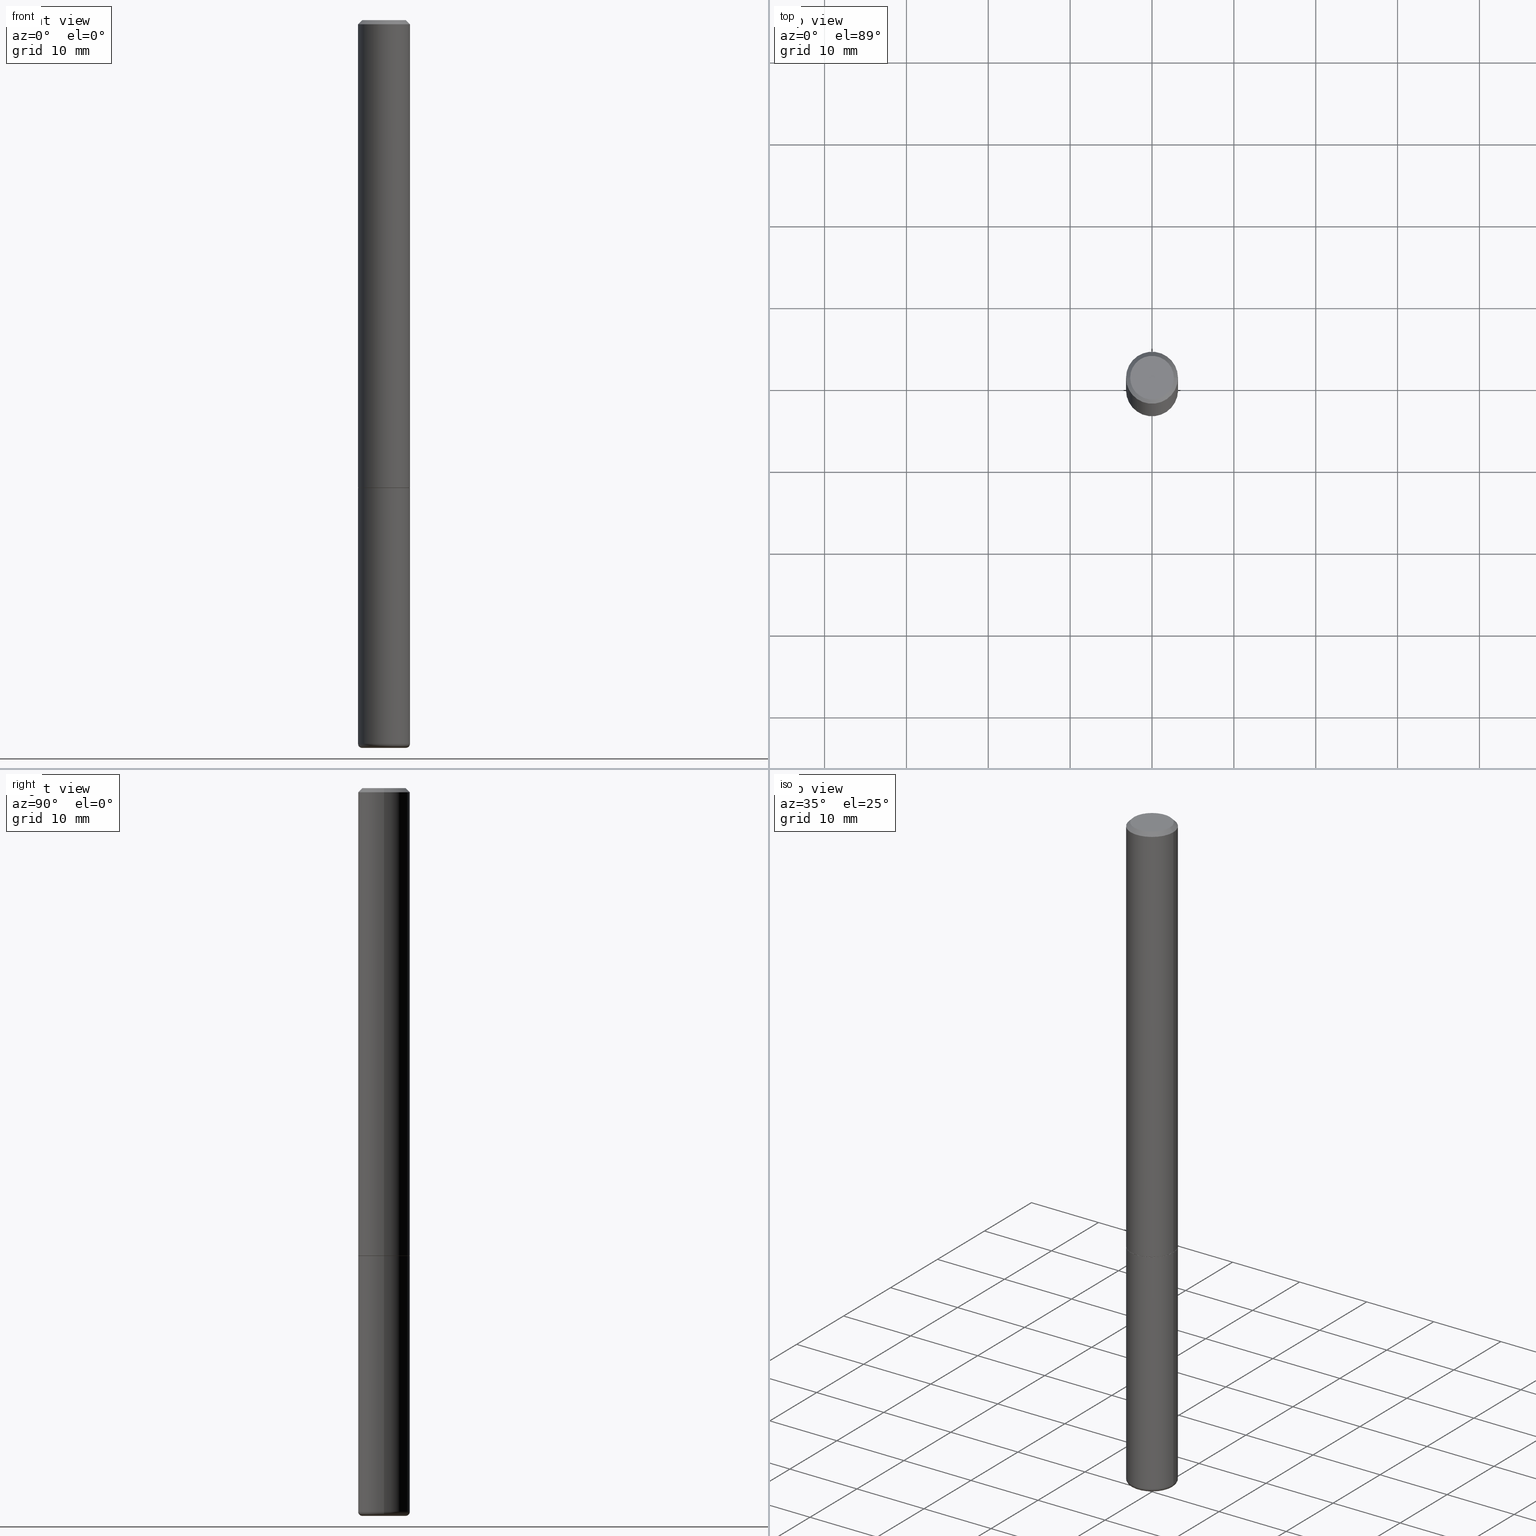
[diagram: canonical four-view strip — front | top / right | iso, engineering-drawing reading convention]
A machine part, canonical four-view strip (front | top / right | iso — engineering-drawing reading convention). The complete STEP part file that produces these views, byte-faithful:
ISO-10303-21;
HEADER;
FILE_DESCRIPTION (( 'STEP AP203' ),
    '1' );
FILE_NAME ('33454.STEP',
    '2022-11-02T20:12:24',
    ( '' ),
    ( '' ),
    'SwSTEP 2.0',
    'SolidWorks 2022',
    '' );
FILE_SCHEMA (( 'CONFIG_CONTROL_DESIGN' ));
ENDSEC;

DATA;
#1 = AXIS2_PLACEMENT_3D ( 'NONE', #5, #384, #197 ) ;
#2 = CARTESIAN_POINT ( 'NONE',  ( 8.510233307843451119E-29, -1.215035771807236405E-14, -3.480000761538716514 ) ) ;
#3 = FACE_OUTER_BOUND ( 'NONE', #368, .T. ) ;
#4 = ORIENTED_EDGE ( 'NONE', *, *, #218, .T. ) ;
#5 = CARTESIAN_POINT ( 'NONE',  ( 0.000000000000000000, 0.000000000000000000, 0.000000000000000000 ) ) ;
#6 = ORIENTED_EDGE ( 'NONE', *, *, #226, .T. ) ;
#7 = DIRECTION ( 'NONE',  ( 1.000000000000000000, -6.982962677686299054E-15, 0.000000000000000000 ) ) ;
#8 = COORDINATED_UNIVERSAL_TIME_OFFSET ( 5, 0, .BEHIND. ) ;
#9 = VERTEX_POINT ( 'NONE', #140 ) ;
#10 = VECTOR ( 'NONE', #110, 39.37007874015748143 ) ;
#11 = CYLINDRICAL_SURFACE ( 'NONE', #457, 0.1250000000000000278 ) ;
#12 = APPROVAL_STATUS ( 'not_yet_approved' ) ;
#13 = CC_DESIGN_SECURITY_CLASSIFICATION ( #485, ( #164 ) ) ;
#14 = ADVANCED_FACE ( 'NONE', ( #256 ), #482, .F. ) ;
#15 = VERTEX_POINT ( 'NONE', #224 ) ;
#16 = EDGE_LOOP ( 'NONE', ( #41, #174, #159, #275 ) ) ;
#17 = PERSON_AND_ORGANIZATION ( #399, #56 ) ;
#18 = VERTEX_POINT ( 'NONE', #416 ) ;
#19 = AXIS2_PLACEMENT_3D ( 'NONE', #414, #65, #369 ) ;
#20 = VERTEX_POINT ( 'NONE', #26 ) ;
#21 = ORIENTED_EDGE ( 'NONE', *, *, #378, .F. ) ;
#22 = DIRECTION ( 'NONE',  ( 2.445468806185136597E-29, -3.491481338843145583E-15, -1.000000000000000000 ) ) ;
#23 = LINE ( 'NONE', #225, #133 ) ;
#24 = VECTOR ( 'NONE', #490, 39.37007874015748143 ) ;
#25 = EDGE_CURVE ( 'NONE', #387, #18, #411, .T. ) ;
#26 = CARTESIAN_POINT ( 'NONE',  ( 0.09149296929003288004, -1.284746578135302470E-14, -3.499883649035179456 ) ) ;
#27 = DIRECTION ( 'NONE',  ( 2.445468806185136597E-29, -3.491481338843145583E-15, -1.000000000000000000 ) ) ;
#28 = PRODUCT_RELATED_PRODUCT_CATEGORY ( 'detail', '', ( #295 ) ) ;
#29 = DIRECTION ( 'NONE',  ( -2.445468806185136877E-29, 3.491481338843145188E-15, 1.000000000000000000 ) ) ;
#30 = CARTESIAN_POINT ( 'NONE',  ( 0.000000000000000000, 0.000000000000000000, 0.000000000000000000 ) ) ;
#31 = CIRCLE ( 'NONE', #269, 0.09149296929003288004 ) ;
#32 = CIRCLE ( 'NONE', #72, 0.1250000000000000278 ) ;
#33 = FACE_OUTER_BOUND ( 'NONE', #439, .T. ) ;
#34 = LINE ( 'NONE', #346, #219 ) ;
#35 = FACE_OUTER_BOUND ( 'NONE', #467, .T. ) ;
#36 = ADVANCED_FACE ( 'NONE', ( #220 ), #333, .T. ) ;
#37 =( NAMED_UNIT ( * ) PLANE_ANGLE_UNIT ( ) SI_UNIT ( $, .RADIAN. ) );
#38 = CONICAL_SURFACE ( 'NONE', #143, 0.1249999999999993477, 0.7853981633974473908 ) ;
#39 = DIRECTION ( 'NONE',  ( 1.000000000000000000, -6.982962677686262766E-15, 0.000000000000000000 ) ) ;
#40 = MANIFOLD_SOLID_BREP ( 'Body-Move/Copy2[1]', #90 ) ;
#41 = ORIENTED_EDGE ( 'NONE', *, *, #77, .F. ) ;
#42 = FACE_OUTER_BOUND ( 'NONE', #246, .T. ) ;
#43 = ORIENTED_EDGE ( 'NONE', *, *, #205, .F. ) ;
#44 = CC_DESIGN_DATE_AND_TIME_ASSIGNMENT ( #491, #117, ( #156 ) ) ;
#45 = EDGE_CURVE ( 'NONE', #18, #168, #445, .T. ) ;
#46 = CARTESIAN_POINT ( 'NONE',  ( -0.09149296929003288004, -1.158088645890558740E-14, -3.499883649035179456 ) ) ;
#47 = DATE_TIME_ROLE ( 'classification_date' ) ;
#48 = AXIS2_PLACEMENT_3D ( 'NONE', #311, #149, #83 ) ;
#49 = CARTESIAN_POINT ( 'NONE',  ( -0.1250000000000000278, -9.114916945534594439E-15, -3.480000761538716514 ) ) ;
#50 = EDGE_LOOP ( 'NONE', ( #134, #163, #248, #325 ) ) ;
#51 = APPROVAL ( #302, 'UNSPECIFIED' ) ;
#52 = ORIENTED_EDGE ( 'NONE', *, *, #45, .T. ) ;
#53 = ORIENTED_EDGE ( 'NONE', *, *, #218, .F. ) ;
#54 = ORIENTED_EDGE ( 'NONE', *, *, #267, .F. ) ;
#55 = AXIS2_PLACEMENT_3D ( 'NONE', #191, #230, #39 ) ;
#56 = ORGANIZATION ( 'UNSPECIFIED', 'UNSPECIFIED', '' ) ;
#57 = EDGE_LOOP ( 'NONE', ( #288, #398 ) ) ;
#58 = DIRECTION ( 'NONE',  ( -0.7071067811865232589, 7.493145998870265808E-15, 0.7071067811865715536 ) ) ;
#59 = CARTESIAN_POINT ( 'NONE',  ( -0.1250000000000000278, -3.072907159217412699E-15, -2.248999999999999222 ) ) ;
#60 = CARTESIAN_POINT ( 'NONE',  ( 5.502304813916556222E-29, -7.855833012397075293E-15, -2.249999999999999556 ) ) ;
#61 = CARTESIAN_POINT ( 'NONE',  ( 0.1249999999999993477, -9.273918764983004048E-16, -0.02000000000000014266 ) ) ;
#62 = EDGE_CURVE ( 'NONE', #360, #492, #186, .T. ) ;
#63 = DIRECTION ( 'NONE',  ( 1.000000000000000000, -6.982962677686269077E-15, 0.000000000000000000 ) ) ;
#64 = AXIS2_PLACEMENT_3D ( 'NONE', #30, #266, #463 ) ;
#65 = DIRECTION ( 'NONE',  ( 2.445468806185136597E-29, -3.491481338843145583E-15, -1.000000000000000000 ) ) ;
#66 = CARTESIAN_POINT ( 'NONE',  ( 1.043851414335219781E-45, -1.490343170380447145E-31, -4.268512490100411279E-17 ) ) ;
#67 = CARTESIAN_POINT ( 'NONE',  ( 0.09149296929003288004, -1.284746578135302470E-14, -3.499883649035179456 ) ) ;
#68 = EDGE_CURVE ( 'NONE', #340, #9, #297, .T. ) ;
#69 = CARTESIAN_POINT ( 'NONE',  ( 0.1250000000000000278, -8.728703347107836346E-16, 6.095220969744921142E-30 ) ) ;
#70 = LENGTH_MEASURE_WITH_UNIT ( LENGTH_MEASURE( 0.02539999999999999897 ), #273 );
#71 = AXIS2_PLACEMENT_3D ( 'NONE', #293, #104, #257 ) ;
#72 = AXIS2_PLACEMENT_3D ( 'NONE', #449, #444, #331 ) ;
#73 = DIRECTION ( 'NONE',  ( 1.000000000000000000, -6.982962677686258822E-15, 4.883557194083110659E-29 ) ) ;
#74 = MECHANICAL_CONTEXT ( 'NONE', #255, 'mechanical' ) ;
#75 = DIRECTION ( 'NONE',  ( 2.438088387897960049E-29, -3.491481338843145188E-15, -1.000000000000000000 ) ) ;
#76 = DIRECTION ( 'NONE',  ( 1.000000000000000000, -6.982962677686265922E-15, 0.000000000000000000 ) ) ;
#77 = EDGE_CURVE ( 'NONE', #354, #139, #334, .T. ) ;
#78 = CARTESIAN_POINT ( 'NONE',  ( 0.1250000000000000278, -8.728703347107860209E-15, -2.249999999999999556 ) ) ;
#79 = DIRECTION ( 'NONE',  ( -2.445468806185136597E-29, 3.491481338843145583E-15, 1.000000000000000000 ) ) ;
#80 = ORIENTED_EDGE ( 'NONE', *, *, #188, .F. ) ;
#81 = TOROIDAL_SURFACE ( 'NONE', #456, 0.1050000000000002459, 0.01999999999999983041 ) ;
#82 = CIRCLE ( 'NONE', #213, 0.1249999999999993477 ) ;
#83 = DIRECTION ( 'NONE',  ( 1.000000000000000000, -6.982962677686261189E-15, 0.000000000000000000 ) ) ;
#84 = FACE_OUTER_BOUND ( 'NONE', #57, .T. ) ;
#85 = CARTESIAN_POINT ( 'NONE',  ( 5.502304813916556222E-29, -7.855833012397075293E-15, -2.249999999999999556 ) ) ;
#86 = DATE_AND_TIME ( #201, #344 ) ;
#87 = EDGE_CURVE ( 'NONE', #18, #387, #249, .T. ) ;
#88 = SECURITY_CLASSIFICATION_LEVEL ( 'unclassified' ) ;
#89 = ORIENTED_EDGE ( 'NONE', *, *, #210, .F. ) ;
#90 = CLOSED_SHELL ( 'NONE', ( #118, #281, #243, #135, #14, #349, #343, #222, #146 ) ) ;
#91 = VECTOR ( 'NONE', #223, 39.37007874015748143 ) ;
#92 = CC_DESIGN_APPROVAL ( #408, ( #164 ) ) ;
#93 = EDGE_LOOP ( 'NONE', ( #207, #436, #284, #320 ) ) ;
#94 = APPROVAL_ROLE ( '' ) ;
#95 = ORIENTED_EDGE ( 'NONE', *, *, #25, .T. ) ;
#96 = ORIENTED_EDGE ( 'NONE', *, *, #171, .T. ) ;
#97 = ORIENTED_EDGE ( 'NONE', *, *, #102, .F. ) ;
#98 = CONICAL_SURFACE ( 'NONE', #177, 0.1048254692900328910, 1.562069680534929894 ) ;
#99 = DIRECTION ( 'NONE',  ( -2.445468806185136597E-29, 3.491481338843145583E-15, 1.000000000000000000 ) ) ;
#100 = DIRECTION ( 'NONE',  ( 0.7071067811865232589, -2.468850131082003836E-15, 0.7071067811865715536 ) ) ;
#101 = DIRECTION ( 'NONE',  ( -2.445468806185136597E-29, 3.491481338843145583E-15, 1.000000000000000000 ) ) ;
#102 = EDGE_CURVE ( 'NONE', #15, #173, #379, .T. ) ;
#103 = ORIENTED_EDGE ( 'NONE', *, *, #440, .T. ) ;
#104 = DIRECTION ( 'NONE',  ( 7.105427357601001859E-15, 1.000000000000000000, -3.491481338843145583E-15 ) ) ;
#105 = CC_DESIGN_PERSON_AND_ORGANIZATION_ASSIGNMENT ( #271, #381, ( #156 ) ) ;
#106 = DIRECTION ( 'NONE',  ( 1.000000000000000000, -6.982962677686269077E-15, 0.000000000000000000 ) ) ;
#107 = CARTESIAN_POINT ( 'NONE',  ( -0.1240000000000000269, -6.969461565706329456E-15, -2.249999999999999556 ) ) ;
#108 = AXIS2_PLACEMENT_3D ( 'NONE', #161, #75, #193 ) ;
#109 = DIRECTION ( 'NONE',  ( 1.000000000000000000, -6.982962677686266711E-15, 4.876176775795935793E-29 ) ) ;
#110 = DIRECTION ( 'NONE',  ( 0.9993908270190955401, -6.978169709227550954E-15, -0.03489949670250396679 ) ) ;
#111 = DIRECTION ( 'NONE',  ( 1.000000000000000000, -6.982962677686265922E-15, 4.876176775795935793E-29 ) ) ;
#112 = DIRECTION ( 'NONE',  ( -2.445468806185136597E-29, 3.491481338843145583E-15, 1.000000000000000000 ) ) ;
#113 = CALENDAR_DATE ( 2022, 2, 11 ) ;
#114 = EDGE_CURVE ( 'NONE', #15, #340, #466, .T. ) ;
#115 = CIRCLE ( 'NONE', #402, 0.1250000000000000278 ) ;
#116 = LINE ( 'NONE', #233, #289 ) ;
#117 = DATE_TIME_ROLE ( 'creation_date' ) ;
#118 = ADVANCED_FACE ( 'NONE', ( #33 ), #98, .F. ) ;
#119 = DIRECTION ( 'NONE',  ( -0.9993908270190955401, 6.856857904024546215E-15, -0.03489949670250396679 ) ) ;
#120 = CC_DESIGN_PERSON_AND_ORGANIZATION_ASSIGNMENT ( #321, #166, ( #164 ) ) ;
#121 = CARTESIAN_POINT ( 'NONE',  ( 5.502304813916556222E-29, -7.855833012397075293E-15, -2.249999999999999556 ) ) ;
#122 = APPLICATION_PROTOCOL_DEFINITION ( 'international standard', 'config_control_design', 1994, #255 ) ;
#123 = ORIENTED_EDGE ( 'NONE', *, *, #460, .T. ) ;
#124 = AXIS2_PLACEMENT_3D ( 'NONE', #60, #147, #373 ) ;
#125 = AXIS2_PLACEMENT_3D ( 'NONE', #308, #112, #268 ) ;
#126 = CIRCLE ( 'NONE', #153, 0.09149296929003288004 ) ;
#127 = CYLINDRICAL_SURFACE ( 'NONE', #1, 0.1250000000000000278 ) ;
#128 = APPROVAL_ROLE ( '' ) ;
#129 = ORIENTED_EDGE ( 'NONE', *, *, #183, .F. ) ;
#130 = PERSON_AND_ORGANIZATION ( #399, #56 ) ;
#131 = ORIENTED_EDGE ( 'NONE', *, *, #310, .T. ) ;
#132 = DIRECTION ( 'NONE',  ( 1.000000000000000000, -6.982962677686265922E-15, 0.000000000000000000 ) ) ;
#133 = VECTOR ( 'NONE', #58, 39.37007874015748854 ) ;
#134 = ORIENTED_EDGE ( 'NONE', *, *, #87, .T. ) ;
#135 = ADVANCED_FACE ( 'NONE', ( #184 ), #306, .F. ) ;
#136 = EDGE_LOOP ( 'NONE', ( #169, #95, #52, #21 ) ) ;
#137 = EDGE_LOOP ( 'NONE', ( #167, #96, #358 ) ) ;
#138 = VECTOR ( 'NONE', #380, 39.37007874015748854 ) ;
#139 = VERTEX_POINT ( 'NONE', #291 ) ;
#140 = CARTESIAN_POINT ( 'NONE',  ( -0.1250000000000000278, -9.114916945534594439E-15, -2.249999999999999556 ) ) ;
#141 = ORIENTED_EDGE ( 'NONE', *, *, #254, .F. ) ;
#142 = CYLINDRICAL_SURFACE ( 'NONE', #471, 0.1249999999999996947 ) ;
#143 = AXIS2_PLACEMENT_3D ( 'NONE', #382, #454, #352 ) ;
#144 = AXIS2_PLACEMENT_3D ( 'NONE', #480, #263, #132 ) ;
#145 = APPLICATION_CONTEXT ( 'configuration controlled 3d designs of mechanical parts and assemblies' ) ;
#146 = ADVANCED_FACE ( 'NONE', ( #406 ), #412, .F. ) ;
#147 = DIRECTION ( 'NONE',  ( -2.445468806185136597E-29, 3.491481338843145583E-15, 1.000000000000000000 ) ) ;
#148 = CARTESIAN_POINT ( 'NONE',  ( 5.499859345110370619E-29, -7.852341531058232286E-15, -2.248999999999999222 ) ) ;
#149 = DIRECTION ( 'NONE',  ( -2.445468806185136597E-29, 3.491481338843145583E-15, 1.000000000000000000 ) ) ;
#150 = CARTESIAN_POINT ( 'NONE',  ( -0.1048254692900328910, -1.148819234622776082E-14, -3.500000000000000000 ) ) ;
#151 = ADVANCED_FACE ( 'NONE', ( #329 ), #371, .T. ) ;
#152 = VECTOR ( 'NONE', #29, 39.37007874015748143 ) ;
#153 = AXIS2_PLACEMENT_3D ( 'NONE', #370, #101, #180 ) ;
#154 = FACE_OUTER_BOUND ( 'NONE', #136, .T. ) ;
#155 = PLANE ( 'NONE',  #283 ) ;
#156 = PRODUCT_DEFINITION ( 'UNKNOWN', '', #164, #421 ) ;
#157 = FACE_OUTER_BOUND ( 'NONE', #443, .T. ) ;
#158 = CARTESIAN_POINT ( 'NONE',  ( 5.502304813916556222E-29, -7.855833012397075293E-15, -2.249999999999999556 ) ) ;
#159 = ORIENTED_EDGE ( 'NONE', *, *, #188, .T. ) ;
#160 = ADVANCED_FACE ( 'NONE', ( #332 ), #142, .T. ) ;
#161 = CARTESIAN_POINT ( 'NONE',  ( 7.332110811570528967E-16, 0.1049999999999992883, -3.879481030290298637E-16 ) ) ;
#162 = APPROVAL_STATUS ( 'not_yet_approved' ) ;
#163 = ORIENTED_EDGE ( 'NONE', *, *, #435, .T. ) ;
#164 = PRODUCT_DEFINITION_FORMATION_WITH_SPECIFIED_SOURCE ( 'ANY', '', #295, .NOT_KNOWN. ) ;
#165 = CARTESIAN_POINT ( 'NONE',  ( 0.000000000000000000, 0.000000000000000000, 0.000000000000000000 ) ) ;
#166 = PERSON_AND_ORGANIZATION_ROLE ( 'creator' ) ;
#167 = ORIENTED_EDGE ( 'NONE', *, *, #190, .F. ) ;
#168 = VERTEX_POINT ( 'NONE', #264 ) ;
#169 = ORIENTED_EDGE ( 'NONE', *, *, #435, .F. ) ;
#170 = APPROVAL ( #162, 'UNSPECIFIED' ) ;
#171 = EDGE_CURVE ( 'NONE', #400, #20, #415, .T. ) ;
#172 = CARTESIAN_POINT ( 'NONE',  ( 8.728703347108385591E-16, 0.1249999999999921729, -2.250000000000000000 ) ) ;
#173 = VERTEX_POINT ( 'NONE', #78 ) ;
#174 = ORIENTED_EDGE ( 'NONE', *, *, #378, .T. ) ;
#175 = CARTESIAN_POINT ( 'NONE',  ( 8.551043004197141345E-29, -1.220862314877521554E-14, -3.496688644144486435 ) ) ;
#176 = CARTESIAN_POINT ( 'NONE',  ( -0.1049999999999992883, 7.681258945454841514E-16, -4.268512490100935748E-17 ) ) ;
#177 = AXIS2_PLACEMENT_3D ( 'NONE', #253, #22, #189 ) ;
#178 = CARTESIAN_POINT ( 'NONE',  ( 8.558856288992939589E-29, -1.221977844872858284E-14, -3.499883649035179456 ) ) ;
#179 = CC_DESIGN_APPROVAL ( #51, ( #156 ) ) ;
#180 = DIRECTION ( 'NONE',  ( 1.000000000000000000, -6.982962677686267499E-15, 0.000000000000000000 ) ) ;
#181 = DIRECTION ( 'NONE',  ( 1.000000000000000000, -6.982962677686267499E-15, 4.874400871621271286E-29 ) ) ;
#182 = DIRECTION ( 'NONE',  ( -1.000000000000000000, 6.982962677686265922E-15, 0.000000000000000000 ) ) ;
#183 = EDGE_CURVE ( 'NONE', #340, #15, #195, .T. ) ;
#184 = FACE_OUTER_BOUND ( 'NONE', #137, .T. ) ;
#185 = DIRECTION ( 'NONE',  ( 1.000000000000000000, -6.982962677686266711E-15, 4.876176775795935793E-29 ) ) ;
#186 = CIRCLE ( 'NONE', #212, 0.1049999999999992883 ) ;
#187 = CIRCLE ( 'NONE', #144, 0.1249999999999993477 ) ;
#188 = EDGE_CURVE ( 'NONE', #168, #194, #424, .T. ) ;
#189 = DIRECTION ( 'NONE',  ( -1.000000000000000000, 6.982962677686262766E-15, 0.000000000000000000 ) ) ;
#190 = EDGE_CURVE ( 'NONE', #400, #322, #116, .T. ) ;
#191 = CARTESIAN_POINT ( 'NONE',  ( 8.559140821647976968E-29, -1.222018468595100934E-14, -3.500000000000000000 ) ) ;
#192 = COORDINATED_UNIVERSAL_TIME_OFFSET ( 5, 0, .BEHIND. ) ;
#193 = DIRECTION ( 'NONE',  ( -1.000000000000000000, 6.982962677686265922E-15, -4.876176775795935793E-29 ) ) ;
#194 = VERTEX_POINT ( 'NONE', #270 ) ;
#195 = CIRCLE ( 'NONE', #48, 0.1250000000000000278 ) ;
#196 = LOCAL_TIME ( 16, 12, 24.00000000000000000, #238 ) ;
#197 = DIRECTION ( 'NONE',  ( 1.000000000000000000, -6.982962677686267499E-15, 4.876176775795935793E-29 ) ) ;
#198 = DIRECTION ( 'NONE',  ( -2.445468806185136597E-29, 3.491481338843145583E-15, 1.000000000000000000 ) ) ;
#199 = DIRECTION ( 'NONE',  ( -2.445468806185136597E-29, 3.491481338843145583E-15, 1.000000000000000000 ) ) ;
#200 = LINE ( 'NONE', #150, #282 ) ;
#201 = CALENDAR_DATE ( 2022, 2, 11 ) ;
#202 = ORIENTED_EDGE ( 'NONE', *, *, #210, .T. ) ;
#203 = TOROIDAL_SURFACE ( 'NONE', #386, 0.1050000000000002459, 0.01999999999999983041 ) ;
#204 = CIRCLE ( 'NONE', #221, 0.1049999999999992883 ) ;
#205 = EDGE_CURVE ( 'NONE', #20, #322, #31, .T. ) ;
#206 = FACE_OUTER_BOUND ( 'NONE', #93, .T. ) ;
#207 = ORIENTED_EDGE ( 'NONE', *, *, #68, .F. ) ;
#208 = ORIENTED_EDGE ( 'NONE', *, *, #440, .F. ) ;
#209 = DATE_AND_TIME ( #353, #277 ) ;
#210 = EDGE_CURVE ( 'NONE', #442, #328, #437, .T. ) ;
#211 = ORIENTED_EDGE ( 'NONE', *, *, #397, .T. ) ;
#212 = AXIS2_PLACEMENT_3D ( 'NONE', #265, #481, #181 ) ;
#213 = AXIS2_PLACEMENT_3D ( 'NONE', #385, #347, #76 ) ;
#214 = ORIENTED_EDGE ( 'NONE', *, *, #362, .F. ) ;
#215 = EDGE_LOOP ( 'NONE', ( #53, #396, #316, #361 ) ) ;
#216 = FACE_OUTER_BOUND ( 'NONE', #239, .T. ) ;
#217 = CARTESIAN_POINT ( 'NONE',  ( 8.510233307843451119E-29, -1.215035771807236405E-14, -3.480000761538716514 ) ) ;
#218 = EDGE_CURVE ( 'NONE', #20, #328, #465, .T. ) ;
#219 = VECTOR ( 'NONE', #462, 39.37007874015748143 ) ;
#220 = FACE_OUTER_BOUND ( 'NONE', #50, .T. ) ;
#221 = AXIS2_PLACEMENT_3D ( 'NONE', #66, #99, #407 ) ;
#222 = ADVANCED_FACE ( 'NONE', ( #428 ), #81, .T. ) ;
#223 = DIRECTION ( 'NONE',  ( -2.445468806185136877E-29, 3.491481338843145188E-15, 1.000000000000000000 ) ) ;
#224 = CARTESIAN_POINT ( 'NONE',  ( 0.1250000000000000278, -1.302322805278314581E-14, -3.480000761538716514 ) ) ;
#225 = CARTESIAN_POINT ( 'NONE',  ( -0.1240000000000000269, -6.974760020054551858E-15, -2.249999999999999556 ) ) ;
#226 = EDGE_CURVE ( 'NONE', #360, #139, #34, .T. ) ;
#227 = DIRECTION ( 'NONE',  ( -2.445468806185136877E-29, 3.491481338843145188E-15, 1.000000000000000000 ) ) ;
#228 = APPLICATION_PROTOCOL_DEFINITION ( 'international standard', 'config_control_design', 1994, #145 ) ;
#229 = APPROVAL_PERSON_ORGANIZATION ( #489, #51, #455 ) ;
#230 = DIRECTION ( 'NONE',  ( -2.445468806185136597E-29, 3.491481338843145583E-15, 1.000000000000000000 ) ) ;
#231 = APPROVAL_DATE_TIME ( #420, #51 ) ;
#232 = CC_DESIGN_PERSON_AND_ORGANIZATION_ASSIGNMENT ( #441, #359, ( #164 ) ) ;
#233 = CARTESIAN_POINT ( 'NONE',  ( -0.09149296929003288004, -1.158088645890558740E-14, -3.499883649035179456 ) ) ;
#234 = DIRECTION ( 'NONE',  ( 1.000000000000000000, -6.982962677686267499E-15, 0.000000000000000000 ) ) ;
#235 = DIRECTION ( 'NONE',  ( -2.445468806185136597E-29, 3.491481338843145583E-15, 1.000000000000000000 ) ) ;
#236 = CIRCLE ( 'NONE', #364, 0.01999999999999982001 ) ;
#237 = DIRECTION ( 'NONE',  ( -2.445468806185136597E-29, 3.491481338843145583E-15, 1.000000000000000000 ) ) ;
#238 = COORDINATED_UNIVERSAL_TIME_OFFSET ( 5, 0, .BEHIND. ) ;
#239 = EDGE_LOOP ( 'NONE', ( #473, #348 ) ) ;
#240 = DIRECTION ( 'NONE',  ( -2.445468806185136597E-29, 3.491481338843145583E-15, 1.000000000000000000 ) ) ;
#241 = DATE_AND_TIME ( #389, #196 ) ;
#242 = EDGE_LOOP ( 'NONE', ( #250, #326, #54, #97 ) ) ;
#243 = ADVANCED_FACE ( 'NONE', ( #431 ), #127, .T. ) ;
#244 = ORIENTED_EDGE ( 'NONE', *, *, #62, .F. ) ;
#245 = AXIS2_PLACEMENT_3D ( 'NONE', #453, #198, #185 ) ;
#246 = EDGE_LOOP ( 'NONE', ( #469, #103, #345, #425 ) ) ;
#247 = ORIENTED_EDGE ( 'NONE', *, *, #362, .T. ) ;
#248 = ORIENTED_EDGE ( 'NONE', *, *, #460, .F. ) ;
#249 = CIRCLE ( 'NONE', #355, 0.1240000000000000269 ) ;
#250 = ORIENTED_EDGE ( 'NONE', *, *, #114, .T. ) ;
#251 = DIRECTION ( 'NONE',  ( 0.7071067811865469066, -7.319954787623254468E-15, -0.7071067811865482389 ) ) ;
#252 = PLANE ( 'NONE',  #298 ) ;
#253 = CARTESIAN_POINT ( 'NONE',  ( 8.559140821647976968E-29, -1.222018468595100934E-14, -3.500000000000000000 ) ) ;
#254 = EDGE_CURVE ( 'NONE', #322, #442, #200, .T. ) ;
#255 = APPLICATION_CONTEXT ( 'configuration controlled 3d designs of mechanical parts and assemblies' ) ;
#256 = FACE_OUTER_BOUND ( 'NONE', #394, .T. ) ;
#257 = DIRECTION ( 'NONE',  ( -1.000000000000000000, 7.105427357600989237E-15, 0.000000000000000000 ) ) ;
#258 = ADVANCED_FACE ( 'NONE', ( #157 ), #38, .T. ) ;
#259 = AXIS2_PLACEMENT_3D ( 'NONE', #217, #260, #488 ) ;
#260 = DIRECTION ( 'NONE',  ( -2.445468806185136597E-29, 3.491481338843145583E-15, 1.000000000000000000 ) ) ;
#261 = LOCAL_TIME ( 16, 12, 24.00000000000000000, #192 ) ;
#262 = DIRECTION ( 'NONE',  ( 1.000000000000000000, -6.982962677686267499E-15, 4.876176775795935793E-29 ) ) ;
#263 = DIRECTION ( 'NONE',  ( -2.445468806185136597E-29, 3.491481338843145583E-15, 1.000000000000000000 ) ) ;
#264 = CARTESIAN_POINT ( 'NONE',  ( 0.1250000000000000278, -8.725211865769015625E-15, -2.248999999999999222 ) ) ;
#265 = CARTESIAN_POINT ( 'NONE',  ( 1.043851414335219781E-45, -1.490343170380447145E-31, -4.268512490100411279E-17 ) ) ;
#266 = DIRECTION ( 'NONE',  ( 0.000000000000000000, 0.000000000000000000, 1.000000000000000000 ) ) ;
#267 = EDGE_CURVE ( 'NONE', #173, #9, #418, .T. ) ;
#268 = DIRECTION ( 'NONE',  ( 1.000000000000000000, -6.982962677686269077E-15, 0.000000000000000000 ) ) ;
#269 = AXIS2_PLACEMENT_3D ( 'NONE', #422, #272, #234 ) ;
#270 = CARTESIAN_POINT ( 'NONE',  ( 0.1249999999999993477, -9.273918764983004048E-16, -0.02000000000000014266 ) ) ;
#271 = PERSON_AND_ORGANIZATION ( #399, #56 ) ;
#272 = DIRECTION ( 'NONE',  ( -2.445468806185136597E-29, 3.491481338843145583E-15, 1.000000000000000000 ) ) ;
#273 =( LENGTH_UNIT ( ) NAMED_UNIT ( * ) SI_UNIT ( $, .METRE. ) );
#274 = ADVANCED_FACE ( 'NONE', ( #35 ), #388, .F. ) ;
#275 = ORIENTED_EDGE ( 'NONE', *, *, #487, .F. ) ;
#276 = VECTOR ( 'NONE', #100, 39.37007874015748854 ) ;
#277 = LOCAL_TIME ( 16, 12, 24.00000000000000000, #393 ) ;
#278 = DIRECTION ( 'NONE',  ( -0.9999619230641714207, 6.952228252019186602E-15, -0.008726535498369011531 ) ) ;
#279 = PERSON_AND_ORGANIZATION_ROLE ( 'classification_officer' ) ;
#280 = ORIENTED_EDGE ( 'NONE', *, *, #190, .T. ) ;
#281 = ADVANCED_FACE ( 'NONE', ( #42 ), #203, .T. ) ;
#282 = VECTOR ( 'NONE', #278, 39.37007874015748854 ) ;
#283 = AXIS2_PLACEMENT_3D ( 'NONE', #158, #335, #111 ) ;
#284 = ORIENTED_EDGE ( 'NONE', *, *, #102, .T. ) ;
#285 = APPROVAL_DATE_TIME ( #86, #408 ) ;
#286 = ORIENTED_EDGE ( 'NONE', *, *, #395, .T. ) ;
#287 = ADVANCED_FACE ( 'NONE', ( #154 ), #296, .T. ) ;
#288 = ORIENTED_EDGE ( 'NONE', *, *, #87, .F. ) ;
#289 = VECTOR ( 'NONE', #119, 39.37007874015748143 ) ;
#290 = LOCAL_TIME ( 16, 12, 24.00000000000000000, #459 ) ;
#291 = CARTESIAN_POINT ( 'NONE',  ( -0.1249999999999993477, 8.030407079339153075E-16, -0.02000000000000014266 ) ) ;
#292 = DIRECTION ( 'NONE',  ( -2.445468806185136597E-29, 3.491481338843145583E-15, 1.000000000000000000 ) ) ;
#293 = CARTESIAN_POINT ( 'NONE',  ( -0.1050000000000002459, -1.140428784552425740E-14, -3.480000761538716514 ) ) ;
#294 = CARTESIAN_POINT ( 'NONE',  ( 8.558856288992939589E-29, -1.221977844872858284E-14, -3.499883649035179456 ) ) ;
#295 = PRODUCT ( '33454', '33454', '', ( #74 ) ) ;
#296 = CONICAL_SURFACE ( 'NONE', #125, 0.1240000000000000269, 0.7853981633974141952 ) ;
#297 = LINE ( 'NONE', #376, #483 ) ;
#298 = AXIS2_PLACEMENT_3D ( 'NONE', #172, #403, #367 ) ;
#299 = DIRECTION ( 'NONE',  ( -2.445468806185136597E-29, 3.491481338843145583E-15, 1.000000000000000000 ) ) ;
#300 = PERSON_AND_ORGANIZATION_ROLE ( 'design_owner' ) ;
#301 = CARTESIAN_POINT ( 'NONE',  ( 0.1048254692900328910, -1.293933960813074065E-14, -3.500000000000000000 ) ) ;
#302 = APPROVAL_STATUS ( 'not_yet_approved' ) ;
#303 = CLOSED_SHELL ( 'NONE', ( #36, #484, #151, #258, #160, #287, #447, #274 ) ) ;
#304 = CARTESIAN_POINT ( 'NONE',  ( 8.510233307843451119E-29, -1.215035771807236405E-14, -3.480000761538716514 ) ) ;
#305 =( NAMED_UNIT ( * ) SI_UNIT ( $, .STERADIAN. ) SOLID_ANGLE_UNIT ( ) );
#306 = CONICAL_SURFACE ( 'NONE', #342, 0.09149296929003288004, 1.535889741755007032 ) ;
#307 = VECTOR ( 'NONE', #251, 39.37007874015748143 ) ;
#308 = CARTESIAN_POINT ( 'NONE',  ( 5.502304813916556222E-29, -7.855833012397075293E-15, -2.249999999999999556 ) ) ;
#309 = CARTESIAN_POINT ( 'NONE',  ( 8.559140821647976968E-29, -1.222018468595100934E-14, -3.500000000000000000 ) ) ;
#310 = EDGE_CURVE ( 'NONE', #328, #15, #236, .T. ) ;
#311 = CARTESIAN_POINT ( 'NONE',  ( 8.510233307843451119E-29, -1.215035771807236405E-14, -3.480000761538716514 ) ) ;
#312 = ORIENTED_EDGE ( 'NONE', *, *, #62, .T. ) ;
#313 = EDGE_CURVE ( 'NONE', #9, #173, #429, .T. ) ;
#314 = DIRECTION ( 'NONE',  ( -2.445468806185136597E-29, 3.491481338843145583E-15, 1.000000000000000000 ) ) ;
#315 = APPROVAL_DATE_TIME ( #241, #170 ) ;
#316 = ORIENTED_EDGE ( 'NONE', *, *, #254, .T. ) ;
#317 = AXIS2_PLACEMENT_3D ( 'NONE', #477, #27, #182 ) ;
#318 = DIMENSIONAL_EXPONENTS ( 1.000000000000000000, 0.000000000000000000, 0.000000000000000000, 0.000000000000000000, 0.000000000000000000, 0.000000000000000000, 0.000000000000000000 ) ;
#319 = PERSON_AND_ORGANIZATION ( #399, #56 ) ;
#320 = ORIENTED_EDGE ( 'NONE', *, *, #313, .F. ) ;
#321 = PERSON_AND_ORGANIZATION ( #399, #56 ) ;
#322 = VERTEX_POINT ( 'NONE', #46 ) ;
#323 = AXIS2_PLACEMENT_3D ( 'NONE', #121, #237, #458 ) ;
#324 = APPROVAL_PERSON_ORGANIZATION ( #17, #408, #94 ) ;
#325 = ORIENTED_EDGE ( 'NONE', *, *, #45, .F. ) ;
#326 = ORIENTED_EDGE ( 'NONE', *, *, #68, .T. ) ;
#327 = CC_DESIGN_PERSON_AND_ORGANIZATION_ASSIGNMENT ( #417, #300, ( #295 ) ) ;
#328 = VERTEX_POINT ( 'NONE', #433 ) ;
#329 = FACE_OUTER_BOUND ( 'NONE', #434, .T. ) ;
#330 = CARTESIAN_POINT ( 'NONE',  ( 5.502304813916556222E-29, -7.855833012397075293E-15, -2.249999999999999556 ) ) ;
#331 = DIRECTION ( 'NONE',  ( 1.000000000000000000, -6.982962677686269077E-15, 0.000000000000000000 ) ) ;
#332 = FACE_OUTER_BOUND ( 'NONE', #16, .T. ) ;
#333 = CONICAL_SURFACE ( 'NONE', #124, 0.1240000000000000269, 0.7853981633974141952 ) ;
#334 = LINE ( 'NONE', #446, #91 ) ;
#335 = DIRECTION ( 'NONE',  ( -2.438088387897960049E-29, 3.491481338843145188E-15, 1.000000000000000000 ) ) ;
#336 = DIRECTION ( 'NONE',  ( -2.445468806185136597E-29, 3.491481338843145583E-15, 1.000000000000000000 ) ) ;
#337 = DIRECTION ( 'NONE',  ( 1.000000000000000000, -6.982962677686269077E-15, 0.000000000000000000 ) ) ;
#338 = DIRECTION ( 'NONE',  ( 1.000000000000000000, -6.982962677686258822E-15, 4.883557194083110659E-29 ) ) ;
#339 = CALENDAR_DATE ( 2022, 2, 11 ) ;
#340 = VERTEX_POINT ( 'NONE', #49 ) ;
#341 = CARTESIAN_POINT ( 'NONE',  ( 0.1049999999999992883, -8.238720831321533257E-16, -4.268512490099867088E-17 ) ) ;
#342 = AXIS2_PLACEMENT_3D ( 'NONE', #178, #374, #451 ) ;
#343 = ADVANCED_FACE ( 'NONE', ( #206 ), #11, .T. ) ;
#344 = LOCAL_TIME ( 16, 12, 24.00000000000000000, #8 ) ;
#345 = ORIENTED_EDGE ( 'NONE', *, *, #114, .F. ) ;
#346 = CARTESIAN_POINT ( 'NONE',  ( -0.1249999999999993477, 8.030407079339153075E-16, -0.02000000000000014266 ) ) ;
#347 = DIRECTION ( 'NONE',  ( -2.445468806185136597E-29, 3.491481338843145583E-15, 1.000000000000000000 ) ) ;
#348 = ORIENTED_EDGE ( 'NONE', *, *, #313, .T. ) ;
#349 = ADVANCED_FACE ( 'NONE', ( #216 ), #252, .F. ) ;
#350 = CARTESIAN_POINT ( 'NONE',  ( 0.1050000000000002459, -1.288356879922942395E-14, -3.480000761538716514 ) ) ;
#351 = ORIENTED_EDGE ( 'NONE', *, *, #171, .F. ) ;
#352 = DIRECTION ( 'NONE',  ( -1.000000000000000000, 6.982962677686265922E-15, 0.000000000000000000 ) ) ;
#353 = CALENDAR_DATE ( 2022, 2, 11 ) ;
#354 = VERTEX_POINT ( 'NONE', #59 ) ;
#355 = AXIS2_PLACEMENT_3D ( 'NONE', #478, #336, #106 ) ;
#356 = CIRCLE ( 'NONE', #438, 0.1048254692900328910 ) ;
#357 = CC_DESIGN_DATE_AND_TIME_ASSIGNMENT ( #209, #47, ( #485 ) ) ;
#358 = ORIENTED_EDGE ( 'NONE', *, *, #395, .F. ) ;
#359 = PERSON_AND_ORGANIZATION_ROLE ( 'design_supplier' ) ;
#360 = VERTEX_POINT ( 'NONE', #176 ) ;
#361 = ORIENTED_EDGE ( 'NONE', *, *, #479, .F. ) ;
#362 = EDGE_CURVE ( 'NONE', #194, #139, #187, .T. ) ;
#363 = AXIS2_PLACEMENT_3D ( 'NONE', #294, #409, #448 ) ;
#364 = AXIS2_PLACEMENT_3D ( 'NONE', #350, #461, #7 ) ;
#365 =( GEOMETRIC_REPRESENTATION_CONTEXT ( 3 ) GLOBAL_UNCERTAINTY_ASSIGNED_CONTEXT ( ( #426 ) ) GLOBAL_UNIT_ASSIGNED_CONTEXT ( ( #377, #37, #305 ) ) REPRESENTATION_CONTEXT ( 'NONE', 'WORKASPACE' ) );
#366 = ORIENTED_EDGE ( 'NONE', *, *, #77, .T. ) ;
#367 = DIRECTION ( 'NONE',  ( -1.000000000000000000, 6.982962677686265922E-15, -4.876176775795935793E-29 ) ) ;
#368 = EDGE_LOOP ( 'NONE', ( #123, #366, #214, #80 ) ) ;
#369 = DIRECTION ( 'NONE',  ( -1.000000000000000000, 6.982962677686262766E-15, 0.000000000000000000 ) ) ;
#370 = CARTESIAN_POINT ( 'NONE',  ( 8.558856288992939589E-29, -1.221977844872858284E-14, -3.499883649035179456 ) ) ;
#371 = CONICAL_SURFACE ( 'NONE', #317, 0.1249999999999993477, 0.7853981633974473908 ) ;
#372 = CC_DESIGN_APPROVAL ( #170, ( #485 ) ) ;
#373 = DIRECTION ( 'NONE',  ( 1.000000000000000000, -6.982962677686269077E-15, 0.000000000000000000 ) ) ;
#374 = DIRECTION ( 'NONE',  ( 2.445468806185136597E-29, -3.491481338843145583E-15, -1.000000000000000000 ) ) ;
#375 = LINE ( 'NONE', #61, #307 ) ;
#376 = CARTESIAN_POINT ( 'NONE',  ( -0.1250000000000000278, 8.881784197001254296E-16, -6.148668862818634329E-30 ) ) ;
#377 =( CONVERSION_BASED_UNIT ( 'INCH', #70 ) LENGTH_UNIT ( ) NAMED_UNIT ( #318 ) );
#378 = EDGE_CURVE ( 'NONE', #354, #168, #32, .T. ) ;
#379 = LINE ( 'NONE', #69, #152 ) ;
#380 = DIRECTION ( 'NONE',  ( 0.9999619230641714207, -6.890705306874825328E-15, -0.008726535498369011531 ) ) ;
#381 = PERSON_AND_ORGANIZATION_ROLE ( 'creator' ) ;
#382 = CARTESIAN_POINT ( 'NONE',  ( 4.890937612370307315E-31, -6.982962677686340913E-17, -0.02000000000000014266 ) ) ;
#383 = CYLINDRICAL_SURFACE ( 'NONE', #245, 0.1249999999999996947 ) ;
#384 = DIRECTION ( 'NONE',  ( -2.445468806185136597E-29, 3.491481338843145583E-15, 1.000000000000000000 ) ) ;
#385 = CARTESIAN_POINT ( 'NONE',  ( 4.890937612370307315E-31, -6.982962677686340913E-17, -0.02000000000000014266 ) ) ;
#386 = AXIS2_PLACEMENT_3D ( 'NONE', #2, #314, #73 ) ;
#387 = VERTEX_POINT ( 'NONE', #107 ) ;
#388 = PLANE ( 'NONE',  #108 ) ;
#389 = CALENDAR_DATE ( 2022, 2, 11 ) ;
#390 = DIRECTION ( 'NONE',  ( 1.000000000000000000, -6.982962677686269077E-15, 0.000000000000000000 ) ) ;
#391 = CC_DESIGN_PERSON_AND_ORGANIZATION_ASSIGNMENT ( #319, #279, ( #485 ) ) ;
#392 = MANIFOLD_SOLID_BREP ( 'Body-Move/Copy2[2]', #303 ) ;
#393 = COORDINATED_UNIVERSAL_TIME_OFFSET ( 5, 0, .BEHIND. ) ;
#394 = EDGE_LOOP ( 'NONE', ( #351, #280, #43 ) ) ;
#395 = EDGE_CURVE ( 'NONE', #322, #20, #126, .T. ) ;
#396 = ORIENTED_EDGE ( 'NONE', *, *, #205, .T. ) ;
#397 = EDGE_CURVE ( 'NONE', #492, #360, #204, .T. ) ;
#398 = ORIENTED_EDGE ( 'NONE', *, *, #25, .F. ) ;
#399 = PERSON ( 'UNSPECIFIED', 'UNSPECIFIED', 'UNSPECIFIED', ('UNSPECIFIED'), ('UNSPECIFIED'), ('UNSPECIFIED') ) ;
#400 = VERTEX_POINT ( 'NONE', #175 ) ;
#401 = EDGE_CURVE ( 'NONE', #492, #194, #375, .T. ) ;
#402 = AXIS2_PLACEMENT_3D ( 'NONE', #148, #235, #337 ) ;
#403 = DIRECTION ( 'NONE',  ( 2.438088387897960049E-29, -3.491481338843145188E-15, -1.000000000000000000 ) ) ;
#404 = ORIENTED_EDGE ( 'NONE', *, *, #487, .T. ) ;
#405 = PRODUCT_DEFINITION_SHAPE ( 'NONE', 'NONE',  #156 ) ;
#406 = FACE_OUTER_BOUND ( 'NONE', #215, .T. ) ;
#407 = DIRECTION ( 'NONE',  ( 1.000000000000000000, -6.982962677686267499E-15, 4.874400871621271286E-29 ) ) ;
#408 = APPROVAL ( #12, 'UNSPECIFIED' ) ;
#409 = DIRECTION ( 'NONE',  ( 2.445468806185136597E-29, -3.491481338843145583E-15, -1.000000000000000000 ) ) ;
#410 = CARTESIAN_POINT ( 'NONE',  ( -0.1048254692900328910, -1.136876711352824121E-14, -3.500000000000000000 ) ) ;
#411 = CIRCLE ( 'NONE', #427, 0.1240000000000000269 ) ;
#412 = CONICAL_SURFACE ( 'NONE', #19, 0.1048254692900328910, 1.562069680534929894 ) ;
#413 = APPROVAL_PERSON_ORGANIZATION ( #130, #170, #128 ) ;
#414 = CARTESIAN_POINT ( 'NONE',  ( 8.559140821647976968E-29, -1.222018468595100934E-14, -3.500000000000000000 ) ) ;
#415 = LINE ( 'NONE', #67, #10 ) ;
#416 = CARTESIAN_POINT ( 'NONE',  ( 0.1240000000000000269, -8.721720384430172617E-15, -2.249999999999999556 ) ) ;
#417 = PERSON_AND_ORGANIZATION ( #399, #56 ) ;
#418 = CIRCLE ( 'NONE', #323, 0.1250000000000000278 ) ;
#419 = CARTESIAN_POINT ( 'NONE',  ( 0.1249999999999996947, -8.728703347107811695E-16, 6.095220969744905027E-30 ) ) ;
#420 = DATE_AND_TIME ( #113, #290 ) ;
#421 = DESIGN_CONTEXT ( 'detailed design', #145, 'design' ) ;
#422 = CARTESIAN_POINT ( 'NONE',  ( 8.558856288992939589E-29, -1.221977844872858284E-14, -3.499883649035179456 ) ) ;
#423 = DIRECTION ( 'NONE',  ( 1.000000000000000000, -6.982962677686262766E-15, 0.000000000000000000 ) ) ;
#424 = LINE ( 'NONE', #419, #24 ) ;
#425 = ORIENTED_EDGE ( 'NONE', *, *, #310, .F. ) ;
#426 = UNCERTAINTY_MEASURE_WITH_UNIT (LENGTH_MEASURE( 1.000000000000000082E-05 ), #377, 'distance_accuracy_value', 'NONE');
#427 = AXIS2_PLACEMENT_3D ( 'NONE', #330, #292, #63 ) ;
#428 = FACE_OUTER_BOUND ( 'NONE', #475, .T. ) ;
#429 = CIRCLE ( 'NONE', #476, 0.1250000000000000278 ) ;
#430 = CIRCLE ( 'NONE', #71, 0.01999999999999982001 ) ;
#431 = FACE_OUTER_BOUND ( 'NONE', #242, .T. ) ;
#432 = ORIENTED_EDGE ( 'NONE', *, *, #401, .F. ) ;
#433 = CARTESIAN_POINT ( 'NONE',  ( 0.1048254692900328910, -1.295217702567425629E-14, -3.500000000000000000 ) ) ;
#434 = EDGE_LOOP ( 'NONE', ( #470, #464, #247, #472 ) ) ;
#435 = EDGE_CURVE ( 'NONE', #387, #354, #23, .T. ) ;
#436 = ORIENTED_EDGE ( 'NONE', *, *, #183, .T. ) ;
#437 = CIRCLE ( 'NONE', #55, 0.1048254692900328910 ) ;
#438 = AXIS2_PLACEMENT_3D ( 'NONE', #309, #79, #423 ) ;
#439 = EDGE_LOOP ( 'NONE', ( #286, #4, #89, #141 ) ) ;
#440 = EDGE_CURVE ( 'NONE', #442, #340, #430, .T. ) ;
#441 = PERSON_AND_ORGANIZATION ( #399, #56 ) ;
#442 = VERTEX_POINT ( 'NONE', #410 ) ;
#443 = EDGE_LOOP ( 'NONE', ( #432, #244, #6, #404 ) ) ;
#444 = DIRECTION ( 'NONE',  ( -2.445468806185136597E-29, 3.491481338843145583E-15, 1.000000000000000000 ) ) ;
#445 = LINE ( 'NONE', #452, #276 ) ;
#446 = CARTESIAN_POINT ( 'NONE',  ( -0.1249999999999996947, 8.881784197001230630E-16, -6.148668862818616813E-30 ) ) ;
#447 = ADVANCED_FACE ( 'NONE', ( #84 ), #155, .F. ) ;
#448 = DIRECTION ( 'NONE',  ( -1.000000000000000000, 6.982962677686267499E-15, 0.000000000000000000 ) ) ;
#449 = CARTESIAN_POINT ( 'NONE',  ( 5.499859345110370619E-29, -7.852341531058232286E-15, -2.248999999999999222 ) ) ;
#450 = DIRECTION ( 'NONE',  ( -2.445468806185136597E-29, 3.491481338843145583E-15, 1.000000000000000000 ) ) ;
#451 = DIRECTION ( 'NONE',  ( -1.000000000000000000, 6.982962677686267499E-15, 0.000000000000000000 ) ) ;
#452 = CARTESIAN_POINT ( 'NONE',  ( 0.1240000000000000269, -8.721720384430172617E-15, -2.249999999999999556 ) ) ;
#453 = CARTESIAN_POINT ( 'NONE',  ( 0.000000000000000000, 0.000000000000000000, 0.000000000000000000 ) ) ;
#454 = DIRECTION ( 'NONE',  ( 2.445468806185136597E-29, -3.491481338843145583E-15, -1.000000000000000000 ) ) ;
#455 = APPROVAL_ROLE ( '' ) ;
#456 = AXIS2_PLACEMENT_3D ( 'NONE', #304, #199, #338 ) ;
#457 = AXIS2_PLACEMENT_3D ( 'NONE', #165, #450, #262 ) ;
#458 = DIRECTION ( 'NONE',  ( 1.000000000000000000, -6.982962677686269077E-15, 0.000000000000000000 ) ) ;
#459 = COORDINATED_UNIVERSAL_TIME_OFFSET ( 5, 0, .BEHIND. ) ;
#460 = EDGE_CURVE ( 'NONE', #168, #354, #115, .T. ) ;
#461 = DIRECTION ( 'NONE',  ( -6.982962677686266711E-15, -1.000000000000000000, 3.491481338843145583E-15 ) ) ;
#462 = DIRECTION ( 'NONE',  ( -0.7071067811865469066, 2.468850131082249961E-15, -0.7071067811865482389 ) ) ;
#463 = DIRECTION ( 'NONE',  ( 1.000000000000000000, 0.000000000000000000, 0.000000000000000000 ) ) ;
#464 = ORIENTED_EDGE ( 'NONE', *, *, #401, .T. ) ;
#465 = LINE ( 'NONE', #301, #138 ) ;
#466 = CIRCLE ( 'NONE', #259, 0.1250000000000000278 ) ;
#467 = EDGE_LOOP ( 'NONE', ( #312, #211 ) ) ;
#468 = SHAPE_DEFINITION_REPRESENTATION ( #405, #474 ) ;
#469 = ORIENTED_EDGE ( 'NONE', *, *, #479, .T. ) ;
#470 = ORIENTED_EDGE ( 'NONE', *, *, #397, .F. ) ;
#471 = AXIS2_PLACEMENT_3D ( 'NONE', #486, #299, #109 ) ;
#472 = ORIENTED_EDGE ( 'NONE', *, *, #226, .F. ) ;
#473 = ORIENTED_EDGE ( 'NONE', *, *, #267, .T. ) ;
#474 = ADVANCED_BREP_SHAPE_REPRESENTATION ( '33454', ( #40, #392, #64 ), #365 ) ;
#475 = EDGE_LOOP ( 'NONE', ( #208, #202, #131, #129 ) ) ;
#476 = AXIS2_PLACEMENT_3D ( 'NONE', #85, #240, #390 ) ;
#477 = CARTESIAN_POINT ( 'NONE',  ( 4.890937612370307315E-31, -6.982962677686340913E-17, -0.02000000000000014266 ) ) ;
#478 = CARTESIAN_POINT ( 'NONE',  ( 5.502304813916556222E-29, -7.855833012397075293E-15, -2.249999999999999556 ) ) ;
#479 = EDGE_CURVE ( 'NONE', #328, #442, #356, .T. ) ;
#480 = CARTESIAN_POINT ( 'NONE',  ( 4.890937612370307315E-31, -6.982962677686340913E-17, -0.02000000000000014266 ) ) ;
#481 = DIRECTION ( 'NONE',  ( -2.445468806185136597E-29, 3.491481338843145583E-15, 1.000000000000000000 ) ) ;
#482 = CONICAL_SURFACE ( 'NONE', #363, 0.09149296929003288004, 1.535889741755007032 ) ;
#483 = VECTOR ( 'NONE', #227, 39.37007874015748143 ) ;
#484 = ADVANCED_FACE ( 'NONE', ( #3 ), #383, .T. ) ;
#485 = SECURITY_CLASSIFICATION ( '', '', #88 ) ;
#486 = CARTESIAN_POINT ( 'NONE',  ( 0.000000000000000000, 0.000000000000000000, 0.000000000000000000 ) ) ;
#487 = EDGE_CURVE ( 'NONE', #139, #194, #82, .T. ) ;
#488 = DIRECTION ( 'NONE',  ( 1.000000000000000000, -6.982962677686261189E-15, 0.000000000000000000 ) ) ;
#489 = PERSON_AND_ORGANIZATION ( #399, #56 ) ;
#490 = DIRECTION ( 'NONE',  ( -2.445468806185136877E-29, 3.491481338843145188E-15, 1.000000000000000000 ) ) ;
#491 = DATE_AND_TIME ( #339, #261 ) ;
#492 = VERTEX_POINT ( 'NONE', #341 ) ;
ENDSEC;
END-ISO-10303-21;
